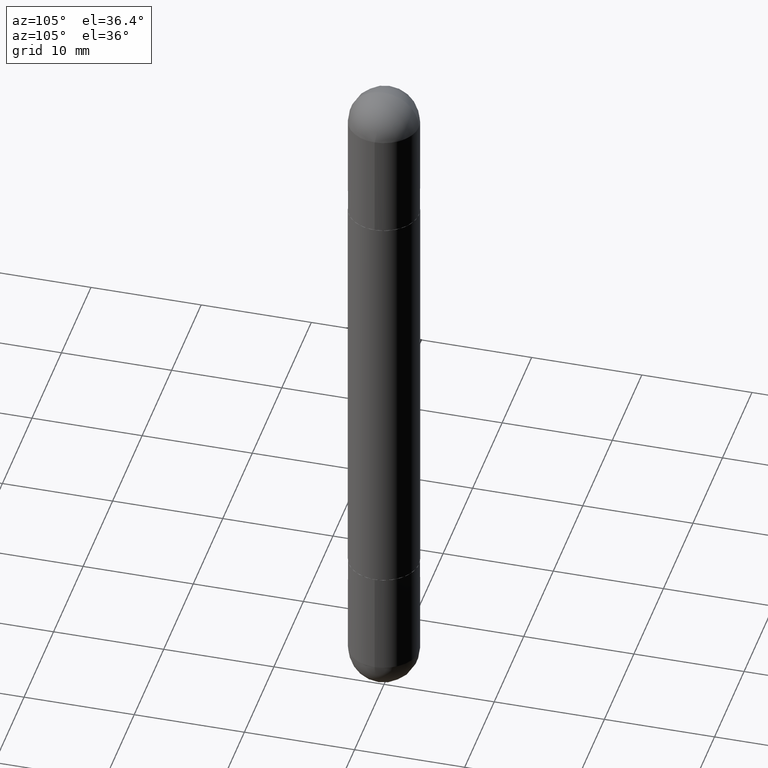
[diagram: clean part render]
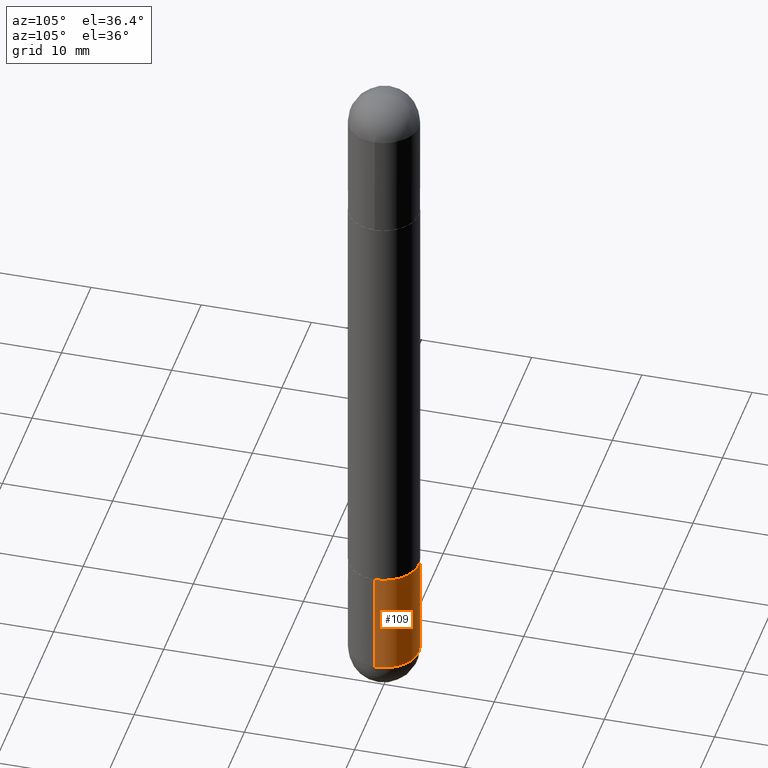
[diagram: same view with one face highlighted and labeled with its STEP entity id]
A machine part, auxiliary view. The second image highlights one B-rep face of the part: STEP entity #109.
In plain terms, the highlighted cylindrical surface (edge-blend (fillet) strip) has radius 3.175 mm, axis along (-0, 0, 1).
Its self-contained STEP definition (entity closure, byte-faithful):
#31 = VERTEX_POINT ( 'NONE', #503 ) ;
#53 = LINE ( 'NONE', #307, #649 ) ;
#55 = EDGE_LOOP ( 'NONE', ( #289, #680, #759, #589, #596 ) ) ;
#72 = DIRECTION ( 'NONE',  ( -2.445468806185136877E-29, 3.491481338843145188E-15, 1.000000000000000000 ) ) ;
#109 = ADVANCED_FACE ( 'NONE', ( #497 ), #246, .T. ) ;
#124 = EDGE_CURVE ( 'NONE', #385, #198, #135, .T. ) ;
#135 = CIRCLE ( 'NONE', #796, 0.1250000000000000000 ) ;
#137 = CARTESIAN_POINT ( 'NONE',  ( -0.1250000000000000000, 8.881784197001252323E-16, -6.148668862818632227E-30 ) ) ;
#141 = CARTESIAN_POINT ( 'NONE',  ( 8.728703347108403340E-16, 0.1249999999999915623, -2.375000000000000888 ) ) ;
#178 = AXIS2_PLACEMENT_3D ( 'NONE', #558, #572, #262 ) ;
#183 = DIRECTION ( 'NONE',  ( 1.000000000000000000, -6.982962677686266711E-15, 4.876176775795935793E-29 ) ) ;
#198 = VERTEX_POINT ( 'NONE', #213 ) ;
#201 = CARTESIAN_POINT ( 'NONE',  ( -0.1250000000000000000, -6.749437009019255804E-15, -2.000000000000000000 ) ) ;
#203 = CARTESIAN_POINT ( 'NONE',  ( 0.1250000000000000000, -8.510485763430165164E-15, -2.375000000000000000 ) ) ;
#213 = CARTESIAN_POINT ( 'NONE',  ( -0.1250000000000000000, -6.749437009019256592E-15, -2.375000000000000000 ) ) ;
#217 = DIRECTION ( 'NONE',  ( 1.000000000000000000, -6.982962677686270655E-15, 0.000000000000000000 ) ) ;
#246 = CYLINDRICAL_SURFACE ( 'NONE', #545, 0.1250000000000000000 ) ;
#257 = CIRCLE ( 'NONE', #679, 0.1250000000000000000 ) ;
#258 = CARTESIAN_POINT ( 'NONE',  ( 0.000000000000000000, 0.000000000000000000, 0.000000000000000000 ) ) ;
#262 = DIRECTION ( 'NONE',  ( 1.000000000000000000, -6.982962677686270655E-15, 0.000000000000000000 ) ) ;
#266 = CIRCLE ( 'NONE', #178, 0.1250000000000000000 ) ;
#289 = ORIENTED_EDGE ( 'NONE', *, *, #124, .T. ) ;
#306 = EDGE_CURVE ( 'NONE', #198, #667, #391, .T. ) ;
#307 = CARTESIAN_POINT ( 'NONE',  ( 0.1250000000000000000, -8.728703347107833388E-16, 6.095220969744919741E-30 ) ) ;
#319 = DIRECTION ( 'NONE',  ( -2.445468806185136597E-29, 3.491481338843145583E-15, 1.000000000000000000 ) ) ;
#385 = VERTEX_POINT ( 'NONE', #141 ) ;
#391 = LINE ( 'NONE', #137, #546 ) ;
#412 = EDGE_CURVE ( 'NONE', #540, #385, #257, .T. ) ;
#424 = DIRECTION ( 'NONE',  ( 1.000000000000000000, -6.982962677686270655E-15, 0.000000000000000000 ) ) ;
#436 = DIRECTION ( 'NONE',  ( -2.445468806185136597E-29, 3.491481338843145583E-15, 1.000000000000000000 ) ) ;
#483 = EDGE_CURVE ( 'NONE', #540, #31, #53, .T. ) ;
#490 = CARTESIAN_POINT ( 'NONE',  ( 5.807988414689700538E-29, -8.292268179752471696E-15, -2.375000000000000000 ) ) ;
#497 = FACE_OUTER_BOUND ( 'NONE', #55, .T. ) ;
#503 = CARTESIAN_POINT ( 'NONE',  ( 0.1250000000000000000, -7.855833012397075293E-15, -2.000000000000000000 ) ) ;
#515 = CARTESIAN_POINT ( 'NONE',  ( 5.807988414689700538E-29, -8.292268179752471696E-15, -2.375000000000000000 ) ) ;
#540 = VERTEX_POINT ( 'NONE', #203 ) ;
#545 = AXIS2_PLACEMENT_3D ( 'NONE', #258, #436, #183 ) ;
#546 = VECTOR ( 'NONE', #72, 39.37007874015748143 ) ;
#558 = CARTESIAN_POINT ( 'NONE',  ( 4.890937612370273194E-29, -6.982962677686291165E-15, -2.000000000000000000 ) ) ;
#566 = EDGE_CURVE ( 'NONE', #31, #667, #266, .T. ) ;
#572 = DIRECTION ( 'NONE',  ( -2.445468806185136597E-29, 3.491481338843145583E-15, 1.000000000000000000 ) ) ;
#589 = ORIENTED_EDGE ( 'NONE', *, *, #483, .F. ) ;
#596 = ORIENTED_EDGE ( 'NONE', *, *, #412, .T. ) ;
#649 = VECTOR ( 'NONE', #794, 39.37007874015748143 ) ;
#667 = VERTEX_POINT ( 'NONE', #201 ) ;
#679 = AXIS2_PLACEMENT_3D ( 'NONE', #515, #768, #217 ) ;
#680 = ORIENTED_EDGE ( 'NONE', *, *, #306, .T. ) ;
#759 = ORIENTED_EDGE ( 'NONE', *, *, #566, .F. ) ;
#768 = DIRECTION ( 'NONE',  ( -2.445468806185136597E-29, 3.491481338843145583E-15, 1.000000000000000000 ) ) ;
#794 = DIRECTION ( 'NONE',  ( -2.445468806185136877E-29, 3.491481338843145188E-15, 1.000000000000000000 ) ) ;
#796 = AXIS2_PLACEMENT_3D ( 'NONE', #490, #319, #424 ) ;